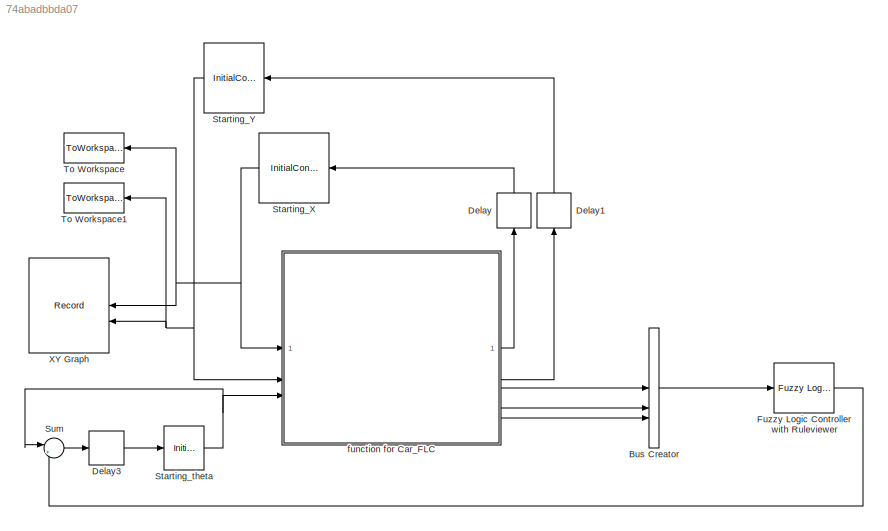
MODEL slx_74abadbbda07
KIND model
CONFIG AbsTol = auto
CONFIG EnableMultiTasking = off
CONFIG FixedStep = auto
CONFIG MaxStep = auto
CONFIG MinStep = auto
CONFIG RelTol = 1e-3
CONFIG SampleTimeConstraint = Unconstrained
CONFIG SolverName = VariableStepAuto
CONFIG StartTime = 0.0
CONFIG StopTime = 100
BLOCK [BusCreator] Bus Creator
  DisplayOption = bar
  InheritFromInputs = on
  Inputs = 3
BLOCK [Delay] Delay
  DelayLength = 1
  InitialCondition = 0
  InputPortMap = u0
  NameLocation = right
BLOCK [Delay] Delay1
  DelayLength = 1
  InitialCondition = 0
  InputPortMap = u0
  NameLocation = right
BLOCK [Delay] Delay3
  DelayLength = 1
  InitialCondition = 0
  InputPortMap = u0
BLOCK [Reference] Fuzzy Logic Controller with Ruleviewer  REF=fuzblock/Fuzzy Logic   (lib defined in mdl_858b3b3e7478)
Controller 
with Ruleviewer
  SourceBlock = fuzblock/Fuzzy Logic \nController \nwith Ruleviewer
  SourceType = Fuzzy Inference System
BLOCK [InitialCondition] Starting_X
  Value = 4
BLOCK [InitialCondition] Starting_Y
  Value = 0.4
BLOCK [InitialCondition] Starting_theta
  Value = 0
BLOCK [Sum] Sum
  Inputs = |++
BLOCK [ToWorkspace] To Workspace
  FixptAsFi = on
  MaxDataPoints = inf
  NameLocation = top
  SampleTime = -1
  VariableName = X
BLOCK [ToWorkspace] To Workspace1
  FixptAsFi = on
  MaxDataPoints = inf
  NameLocation = top
  SampleTime = -1
  VariableName = Y
BLOCK [Record] XY Graph
  CompatibilityTag = XY
  FileSettingsInternal = {"entries":[{"content":{"excelSettings":{"content":{},"type":"Streamout.ExcelSettings"}},"type":"Streamout.FileSettingStorage","uuid":""}],"packageUris":["http:\/\/schema.mathworks.com\/mf0\/streamout_blocks\/R2020a"],"version":"1.0"}
  Layout = [1 1]
  SignalsInternal = {"entries":[{"content":{"signals":[{"content":{"blockPath":[],"dimensions":[1],"domain":"","lineColor":"#a2142f","plots":[1],"port":1,"sid":[""],"signalID":19,"signalName":"Starting_X"},"type":"RecordBlkView.Signal","uuid":""},{"content":{"blockPath":[],"dimensions":[1],"domain":"","lineColor":"#139fff","plots":[1],"port":2,"sid":[""],"signalID":23,"signalName":"Starting_Y"},"type":"RecordBlkView....<+164ch>
  VisualizationBindings = {"xyplotplugin":{"info":[{"series":[{"bindingParametersList":[{"parameter":"X-Axis","signalID":19,"signalName":"Starting_X"},{"parameter":"Y-Axis","signalID":23,"signalName":"Starting_Y"}],"seriesID":59682}],"subplotID":1}]}}
  st = -1
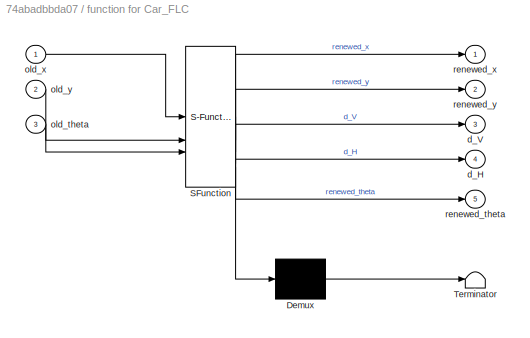
BLOCK [SubSystem] function for Car_FLC
  ErrorFcn = Stateflow.Translate.translate
  PermitHierarchicalResolution = ExplicitOnly
  SFBlockType = MATLAB Function
  TreatAsAtomicUnit = on
BLOCK [Demux] function for Car_FLC/ Demux 
  Outputs = 1
BLOCK [S-Function] function for Car_FLC/ SFunction 
  EnableBusSupport = on
  FunctionName = sf_sfun
  PortCounts = [3 6]
  SFcnIsStateOwnerBlock = off
  SFunctionDeploymentMode = off
  Tag = Stateflow S-Function 2
BLOCK [Terminator] function for Car_FLC/ Terminator 
BLOCK [Outport] function for Car_FLC/d_H
  Port = 4
  VectorParamsAs1DForOutWhenUnconnected = off
BLOCK [Outport] function for Car_FLC/d_V
  Port = 3
  VectorParamsAs1DForOutWhenUnconnected = off
BLOCK [Inport] function for Car_FLC/old_theta
  Port = 3
BLOCK [Inport] function for Car_FLC/old_x
BLOCK [Inport] function for Car_FLC/old_y
  Port = 2
BLOCK [Outport] function for Car_FLC/renewed_theta
  Port = 5
  VectorParamsAs1DForOutWhenUnconnected = off
BLOCK [Outport] function for Car_FLC/renewed_x
  VectorParamsAs1DForOutWhenUnconnected = off
BLOCK [Outport] function for Car_FLC/renewed_y
  Port = 2
  VectorParamsAs1DForOutWhenUnconnected = off
LINE Bus Creator:1 -> Fuzzy Logic Controller with Ruleviewer:1
LINE Delay1:1 -> Starting_Y:1
LINE Delay3:1 -> Starting_theta:1
LINE Delay:1 -> Starting_X:1
LINE Fuzzy Logic Controller with Ruleviewer:1 -> Sum:2
NET Starting_X:1 -> To Workspace:1, XY Graph:1, function for Car_FLC:1
NET Starting_Y:1 -> To Workspace1:1, XY Graph:2, function for Car_FLC:2
NET Starting_theta:1 -> Sum:1, function for Car_FLC:3
LINE Sum:1 -> Delay3:1
LINE function for Car_FLC:1 -> Delay:1
LINE function for Car_FLC:2 -> Delay1:1
LINE function for Car_FLC:3 -> Bus Creator:1
LINE function for Car_FLC:4 -> Bus Creator:2
LINE function for Car_FLC:5 -> Bus Creator:3
note: NET lines group one-source signal fan-out (src -> all destinations, sorted); 1:1 wires keep LINE
CHART function for Car_FLC states=1 transitions=1
  STATE_LABEL 'eML_blk_kernel()'
  STATE_LABEL 'SCRIPT:\nfunction [renewed_x, renewed_y, d_V, d_H, renewed_theta] = car_control(old_x, old_y, old_theta)\n    my_theta = old_theta;\n    renewed_theta = my_theta;\n    \n    % initial d_V and d_H in every round\n    d_V = 0;\n    d_H = 0;\n    \n    % keeping theta in the range [-180, 180]\n    if ( my_theta < -180 )\n        renewed_theta = my_theta + 360;\n    end\n\n    if( my_theta > 180 )\n        renewed_t...<+1028ch>'
CHART  states=0 transitions=0
